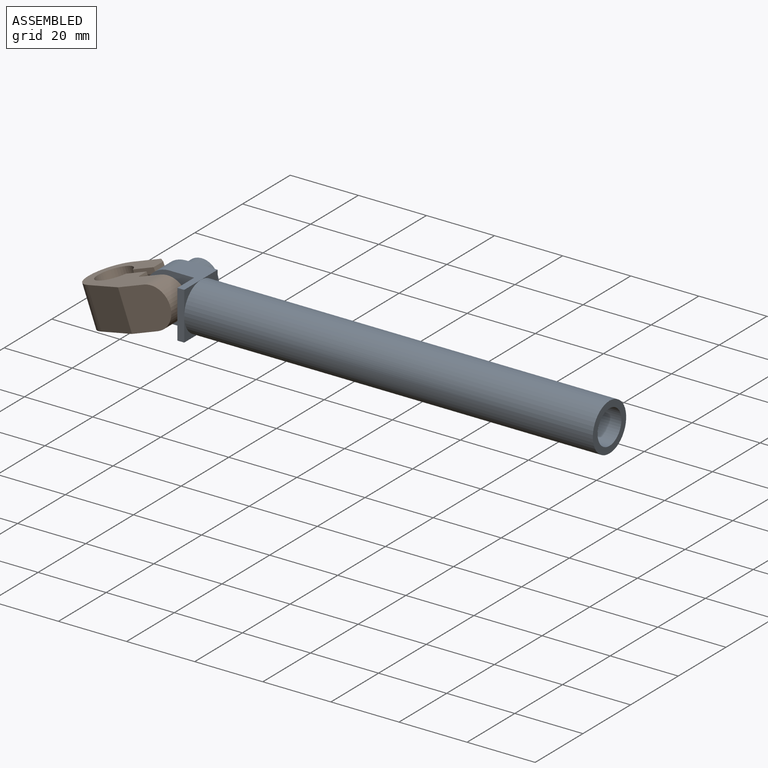
[diagram: assembled view]
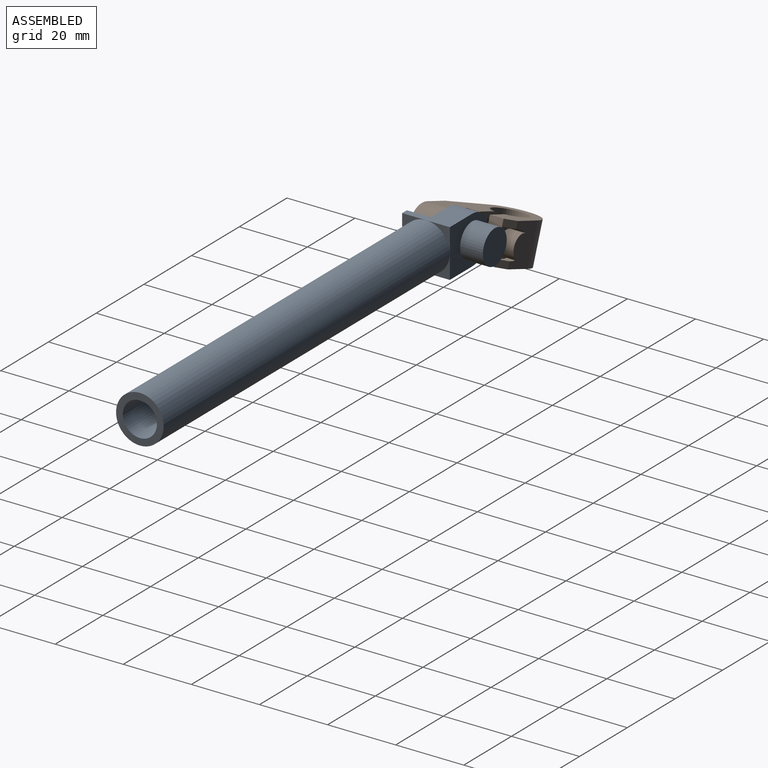
[diagram: assembled view, second angle]
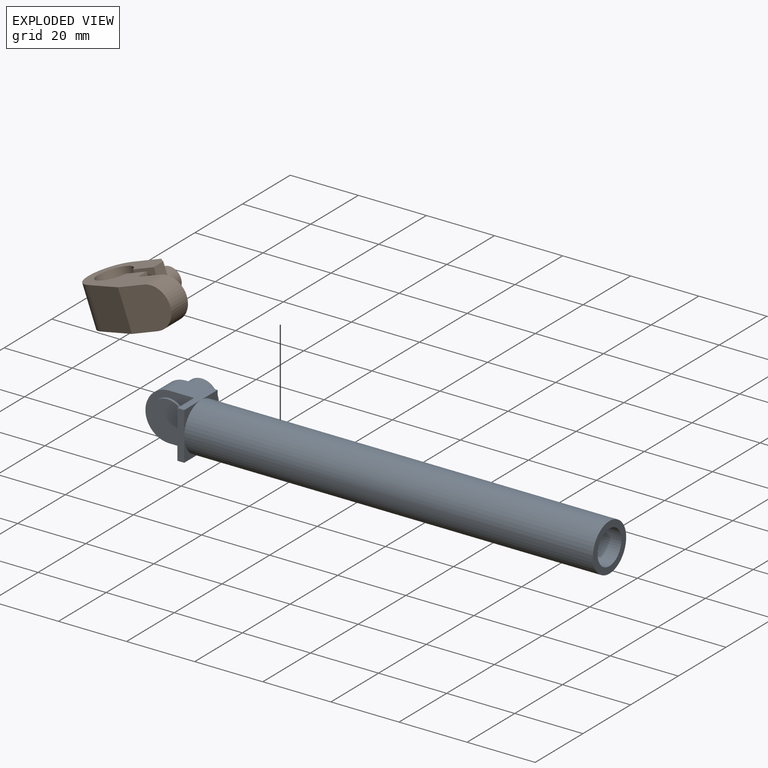
[diagram: exploded view]
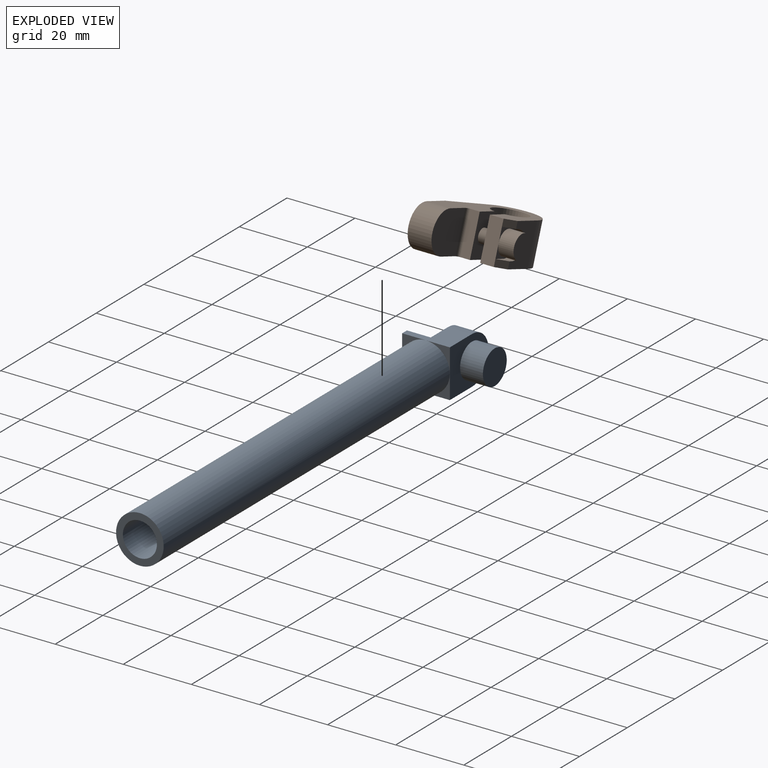
[diagram: exploded view, second angle]
ASSEMBLY  parts=2 mates=2
PART A: 19 faces, bbox 136.3x20.7x14 mm
  f0: cylinder r=7mm len=120mm, axis (-1,0,0), area 5277.9mm2, adj f1,f2,f3,f4,f9
  f1: plane 14x14mm, normal (1,0,0), area 75.4mm2, adj f0,f13
  f2: plane 7x7mm, normal (1,0,0), area 10.5mm2, adj f0,f5,f8
  f3: plane 7x7mm, normal (1,0,0), area 10.5mm2, adj f0,f7,f8
  f4: plane 7x7mm, normal (1,0,0), area 10.5mm2, adj f0,f6,f7
  f5: plane 14x9.3mm, normal (0,0,-1), area 79.1mm2, adj f2,f6,f8,f9,f10,f11,f12
  f6: plane 14x2mm, normal (0,-1,0), area 28mm2, adj f4,f5,f7,f9,f10
  f7: plane 14x9.3mm, normal (0,0,1), area 79.1mm2, adj f3,f4,f6,f8,f10,f11,f12
  f8: plane 16.3x14mm, normal (0,1,0), area 128.6mm2, adj f2,f3,f5,f7,f12,f17
  f9: plane 7x7mm, normal (1,0,0), area 10.5mm2, adj f0,f5,f6
  f10: plane 14x7mm, normal (-1,0,0), area 98mm2, adj f5,f6,f7,f11
  f11: plane 14.3x14mm, normal (0,-1,0), area 100.6mm2, adj f5,f7,f10,f12,f16
  f12: cylinder r=7mm len=14mm, axis (0,1,0), area 153.9mm2, adj f5,f7,f8,f11
  f13: cylinder r=5mm len=100mm, axis (1,0,0), area 3141.6mm2, adj f1,f14
  f14: cone r=5mm half-angle=59deg, axis (1,0,0), area 91.6mm2, adj f13
  f15: plane 10x10mm, normal (0,-1,0), area 78.5mm2, adj f16
  f16: cylinder r=5mm len=10mm, axis (0,1,0), area 22mm2, adj f11,f15
  f17: cylinder r=5mm len=10mm, axis (0,1,0), area 210.5mm2, adj f8,f18
  f18: plane 10x10mm, normal (0,1,0), area 78.5mm2, adj f17
PART B: 23 faces, bbox 32.5x22.3x12 mm
  f0: plane 12x8.8mm, normal (0,1,0), area 72.5mm2, adj f9,f10,f11,f14,f15,f17,f19,f20
  f1: plane 12x4mm, normal (-1,0,0), area 48mm2, adj f2,f10,f11,f16,f19,f20
  f2: plane 12x6.53mm, normal (0,-1,0), area 65.8mm2, adj f1,f3,f10,f11,f18
  f3: cylinder r=5mm len=12mm, axis (0,0,-1), area 340.4mm2, adj f2,f4,f10,f11
  f4: plane 12x6.53mm, normal (0,1,0), area 65.8mm2, adj f3,f5,f10,f11,f18
  f5: plane 12x2.8mm, normal (-1,0,0), area 33.6mm2, adj f4,f10,f11,f13
  f6: plane 12.2x12mm, normal (0,1,0), area 130.9mm2, adj f10,f11,f12,f13
  f7: plane 14.1x12mm, normal (0,-1,0), area 153.7mm2, adj f8,f10,f11,f12
  f8: plane 13.14x12mm, normal (0.34,-0.94,0), area 167.8mm2, adj f7,f9,f10,f11
  f9: cylinder r=8mm len=15.52mm, axis (0,0,-1), area 268.1mm2, adj f0,f8,f10,f11
  f10: plane 26.5x20.3mm, normal (0,0,1), area 260.5mm2, adj f0,f1,f2,f3,f4,f5,f6,f7
  f11: plane 26.5x20.3mm, normal (0,0,-1), area 260.5mm2, adj f0,f1,f2,f3,f4,f5,f6,f7
  f12: cylinder r=6mm len=12mm, axis (0,1,0), area 131.9mm2, adj f6,f7,f10,f11
  f13: cylinder r=1mm len=12mm, axis (0,0,1), area 18.8mm2, adj f5,f6,f10,f11
  f14: plane 3.5x2.5mm, normal (0,0,1), area 5.6mm2, adj f0,f16,f17,f19
  f15: plane 3.5x2.5mm, normal (0,0,-1), area 5.6mm2, adj f0,f16,f17,f20
  f16: plane 8x7.5mm, normal (0,1,0), area 14.6mm2, adj f1,f14,f15,f17,f21
  f17: cylinder r=4mm len=8mm, axis (0,1,0), area 31.4mm2, adj f0,f14,f15,f16
  f18: cylinder r=2mm len=4mm, axis (0,-1,0), area 37.7mm2, adj f2,f4
  f19: plane 2.5x2.5mm, normal (-0.71,0.71,0), area 7.1mm2, adj f0,f1,f11,f14
  f20: plane 2.5x2.5mm, normal (-0.71,0.71,0), area 7.1mm2, adj f0,f1,f10,f15
  f21: cylinder r=3.5mm len=7mm, axis (0,-1,0), area 99mm2, adj f16,f22
  f22: plane 7x7mm, normal (0,1,0), area 38.5mm2, adj f21
PLACE A t=(-4.03,-5.94,-10.33)mm fixed
PLACE B rot(axis=(0,1,0),160deg) t=(-30.71,-1.34,-16.66)mm
MATE planar B.f6 <-> A.f12  axis (0,1,0) through (-15.38,-6.64,-4.69)mm
MATE cylindrical B.f12 <-> A.f12  axis (0,1,0) through (-13.33,-10.14,-10.33)mm
